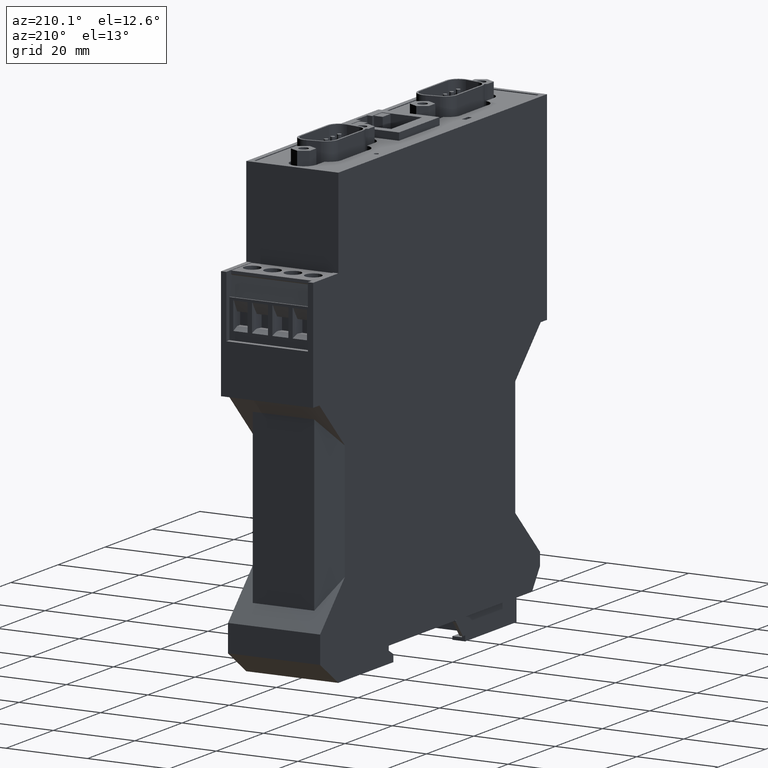
[diagram: clean part render]
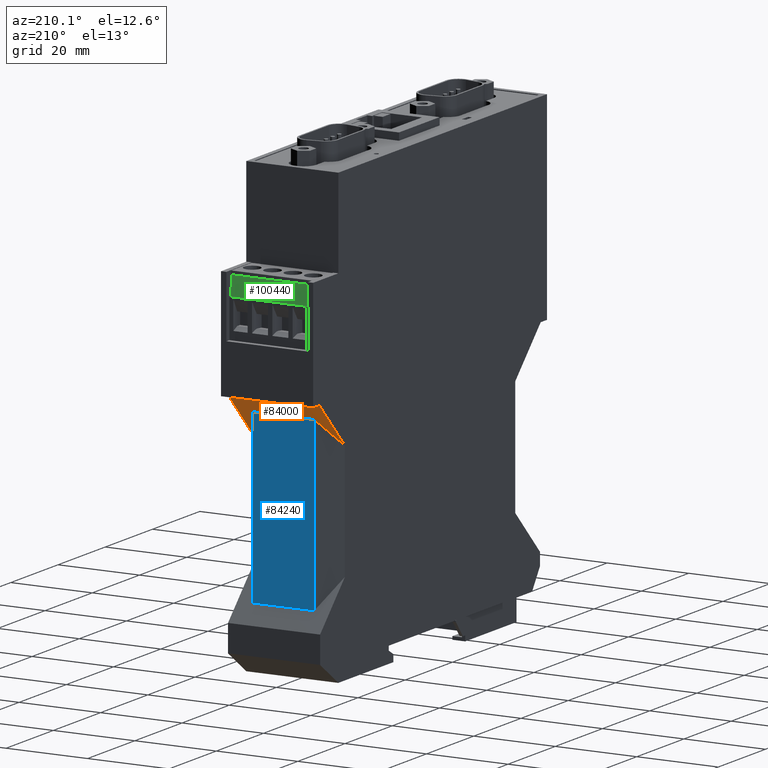
[diagram: same view with three faces highlighted in distinct colors, each labeled with its STEP entity id]
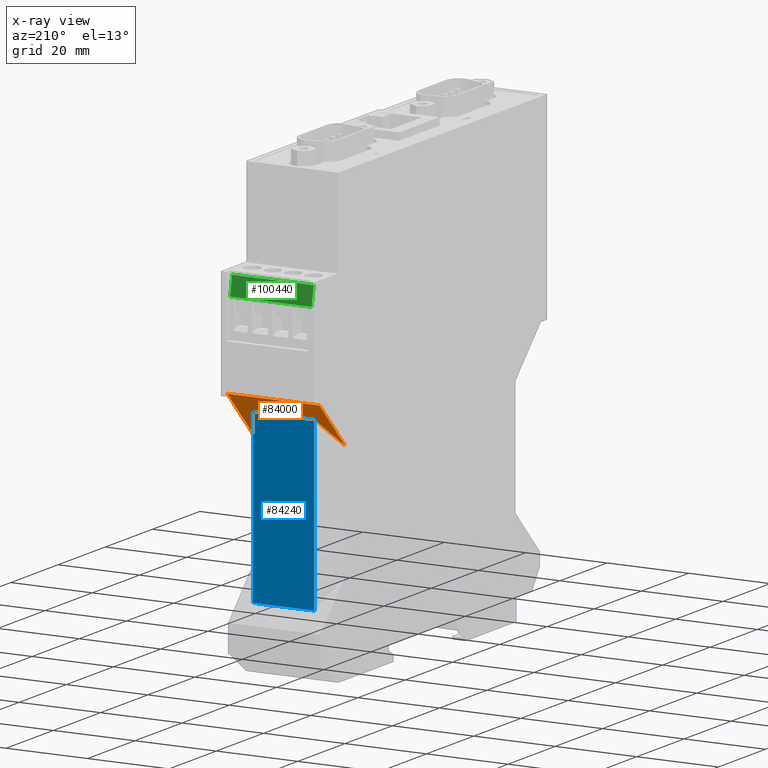
[diagram: x-ray of the same camera — body ghosted, the three highlighted faces saturated]
A machine part, auxiliary view with three faces highlighted in distinct colors.
The next image is the same camera in x-ray (body ghosted, the three faces saturated) — at least one of them is partly hidden behind the body in this view.
Their STEP definitions:

[orange] entity #84000 — the highlighted planar face has unit normal (0, -0.7071, 0.7071).
#760=CARTESIAN_POINT('',(18.5500000000902,47.1000000000011,0.));
#770=VERTEX_POINT('',#760);
#800=CARTESIAN_POINT('',(24.,52.5499999999109,0.));
#810=DIRECTION('',(0.707106781186551,0.707106781186544,0.));
#820=VECTOR('',#810,1.);
#830=LINE('',#800,#820);
#840=CARTESIAN_POINT('',(29.3500000000902,57.900000000001,0.));
#850=VERTEX_POINT('',#840);
#860=EDGE_CURVE('',#770,#850,#830,.T.);
#2910=CARTESIAN_POINT('',(29.3500000000902,57.900000000001,22.6));
#2920=VERTEX_POINT('',#2910);
#2950=CARTESIAN_POINT('',(24.,52.5499999999109,22.6));
#2960=DIRECTION('',(0.707106781186551,0.707106781186544,0.));
#2970=VECTOR('',#2960,1.);
#2980=LINE('',#2950,#2970);
#2990=CARTESIAN_POINT('',(18.5499999999986,47.0999999999095,22.6));
#3000=VERTEX_POINT('',#2990);
#3010=EDGE_CURVE('',#3000,#2920,#2980,.T.);
#4760=CARTESIAN_POINT('',(25.0500000000871,53.599999999998,
3.75277674973077));
#4770=VERTEX_POINT('',#4760);
#4800=CARTESIAN_POINT('',(24.,52.5499999999109,3.14655896703138));
#4810=DIRECTION('',(0.65465367070798,0.654653670707975,0.377964473009226
));
#4820=VECTOR('',#4810,1.);
#4830=LINE('',#4800,#4820);
#4840=EDGE_CURVE('',#770,#4770,#4830,.T.);
#5020=CARTESIAN_POINT('',(24.,52.5499999999109,19.4534410329157));
#5030=DIRECTION('',(0.65465367070798,0.654653670707974,
-0.377964473009227));
#5040=VECTOR('',#5030,1.);
#5050=LINE('',#5020,#5040);
#5060=CARTESIAN_POINT('',(25.0500000000939,53.6000000000048,
18.8472232502124));
#5070=VERTEX_POINT('',#5060);
#5080=EDGE_CURVE('',#3000,#5070,#5050,.T.);
#83590=CARTESIAN_POINT('',(29.3500000000902,57.9000000000011,0.));
#83600=DIRECTION('',(0.,0.,1.));
#83610=VECTOR('',#83600,1.);
#83620=LINE('',#83590,#83610);
#83630=EDGE_CURVE('',#850,#2920,#83620,.T.);
#83820=CARTESIAN_POINT('',(-26.7499999999105,1.80000000000086,11.3));
#83830=DIRECTION('',(-0.707106781186544,0.707106781186551,0.));
#83840=DIRECTION('',(0.707106781186551,0.707106781186544,0.));
#83850=AXIS2_PLACEMENT_3D('',#83820,#83830,#83840);
#83860=PLANE('',#83850);
#83870=ORIENTED_EDGE('',*,*,#860,.T.);
#83880=ORIENTED_EDGE('',*,*,#4840,.F.);
#83890=CARTESIAN_POINT('',(25.0500000000854,53.5999999999963,0.));
#83900=DIRECTION('',(4.52799999999997E-13,4.52799999999993E-13,1.));
#83910=VECTOR('',#83900,1.);
#83920=LINE('',#83890,#83910);
#83930=EDGE_CURVE('',#4770,#5070,#83920,.T.);
#83940=ORIENTED_EDGE('',*,*,#83930,.F.);
#83950=ORIENTED_EDGE('',*,*,#5080,.T.);
#83960=ORIENTED_EDGE('',*,*,#3010,.F.);
#83970=ORIENTED_EDGE('',*,*,#83630,.T.);
#83980=EDGE_LOOP('',(#83970,#83960,#83950,#83940,#83880,#83870));
#83990=FACE_OUTER_BOUND('',#83980,.T.);
#84000=ADVANCED_FACE('',(#83990),#83860,.F.);

[blue] entity #84240 — the highlighted planar face has unit normal (0, -1, -0).
#4680=CARTESIAN_POINT('',(25.0500000000874,12.0000000000026,
3.75277674973103));
#4690=VERTEX_POINT('',#4680);
#4720=CARTESIAN_POINT('',(25.0500000000873,24.,3.75277674973095));
#4730=DIRECTION('',(-6.60000000000277E-15,1.,-6.11991285341162E-15));
#4740=VECTOR('',#4730,1.);
#4750=LINE('',#4720,#4740);
#4760=CARTESIAN_POINT('',(25.0500000000871,53.599999999998,
3.75277674973077));
#4770=VERTEX_POINT('',#4760);
#4780=EDGE_CURVE('',#4690,#4770,#4750,.T.);
#5060=CARTESIAN_POINT('',(25.0500000000939,53.6000000000048,
18.8472232502124));
#5070=VERTEX_POINT('',#5060);
#5100=CARTESIAN_POINT('',(25.0500000000941,24.,18.8472232502123));
#5110=DIRECTION('',(-6.59999999999827E-15,1.,3.81051177665051E-15));
#5120=VECTOR('',#5110,1.);
#5130=LINE('',#5100,#5120);
#5140=CARTESIAN_POINT('',(25.0500000000942,11.9999999999957,
18.8472232502123));
#5150=VERTEX_POINT('',#5140);
#5160=EDGE_CURVE('',#5150,#5070,#5130,.T.);
#83890=CARTESIAN_POINT('',(25.0500000000854,53.5999999999963,0.));
#83900=DIRECTION('',(4.52799999999997E-13,4.52799999999993E-13,1.));
#83910=VECTOR('',#83900,1.);
#83920=LINE('',#83890,#83910);
#83930=EDGE_CURVE('',#4770,#5070,#83920,.T.);
#84080=CARTESIAN_POINT('',(25.0500000000904,68.5000000000004,
11.299999999981));
#84090=DIRECTION('',(-1.,-6.6E-15,4.528E-13));
#84100=DIRECTION('',(4.528E-13,0.,1.));
#84110=AXIS2_PLACEMENT_3D('',#84080,#84090,#84100);
#84120=PLANE('',#84110);
#84130=ORIENTED_EDGE('',*,*,#4780,.T.);
#84140=CARTESIAN_POINT('',(25.0500000000857,12.0000000000043,0.));
#84150=DIRECTION('',(-4.52800000000003E-13,4.52799999999919E-13,-1.));
#84160=VECTOR('',#84150,1.);
#84170=LINE('',#84140,#84160);
#84180=EDGE_CURVE('',#5150,#4690,#84170,.T.);
#84190=ORIENTED_EDGE('',*,*,#84180,.T.);
#84200=ORIENTED_EDGE('',*,*,#5160,.F.);
#84210=ORIENTED_EDGE('',*,*,#83930,.T.);
#84220=EDGE_LOOP('',(#84210,#84200,#84190,#84130));
#84230=FACE_OUTER_BOUND('',#84220,.T.);
#84240=ADVANCED_FACE('',(#84230),#84120,.F.);

[green] entity #100440 — the highlighted planar face has unit normal (0, 0.9848, 0.1736).
#98020=CARTESIAN_POINT('',(29.5387195026883,83.9860003350739,
21.3000000001629));
#98030=VERTEX_POINT('',#98020);
#98060=CARTESIAN_POINT('',(40.1158698265483,24.,21.3000000001629));
#98070=DIRECTION('',(-0.173648177666923,0.984807753012209,0.));
#98080=VECTOR('',#98070,1.);
#98090=LINE('',#98060,#98080);
#98100=CARTESIAN_POINT('',(30.3500000000092,79.3850000000071,
21.3000000001629));
#98110=VERTEX_POINT('',#98100);
#98120=EDGE_CURVE('',#98110,#98030,#98090,.T.);
#98460=CARTESIAN_POINT('',(40.1158698265483,24.,1.30000000018787));
#98470=DIRECTION('',(0.173648177666923,-0.984807753012209,
3.1431801605919E-13));
#98480=VECTOR('',#98470,1.);
#98490=LINE('',#98460,#98480);
#98500=CARTESIAN_POINT('',(29.5387195026883,83.9860003350739,
1.30000000016873));
#98510=VERTEX_POINT('',#98500);
#98520=CARTESIAN_POINT('',(30.3500000000092,79.3850000000071,
1.30000000017019));
#98530=VERTEX_POINT('',#98520);
#98540=EDGE_CURVE('',#98510,#98530,#98490,.T.);
#100090=CARTESIAN_POINT('',(29.5387195026883,83.9860003350738,
18.800000000168));
#100100=DIRECTION('',(-1.13152790739016E-17,6.41721364957217E-17,1.));
#100110=VECTOR('',#100100,1.);
#100120=LINE('',#100090,#100110);
#100130=EDGE_CURVE('',#98510,#98030,#100120,.T.);
#100280=CARTESIAN_POINT('',(29.6209356073298,83.5197296355405,
-3.09999999983205));
#100290=DIRECTION('',(0.984807753012209,0.173648177666923,0.));
#100300=DIRECTION('',(0.173648177666923,-0.984807753012209,-0.));
#100310=AXIS2_PLACEMENT_3D('',#100280,#100290,#100300);
#100320=PLANE('',#100310);
#100330=CARTESIAN_POINT('',(30.3500000000092,79.3850000000071,
18.800000000168));
#100340=DIRECTION('',(0.,0.,1.));
#100350=VECTOR('',#100340,1.);
#100360=LINE('',#100330,#100350);
#100370=EDGE_CURVE('',#98530,#98110,#100360,.T.);
#100380=ORIENTED_EDGE('',*,*,#100370,.F.);
#100390=ORIENTED_EDGE('',*,*,#98120,.F.);
#100400=ORIENTED_EDGE('',*,*,#100130,.T.);
#100410=ORIENTED_EDGE('',*,*,#98540,.F.);
#100420=EDGE_LOOP('',(#100410,#100400,#100390,#100380));
#100430=FACE_OUTER_BOUND('',#100420,.T.);
#100440=ADVANCED_FACE('',(#100430),#100320,.T.);